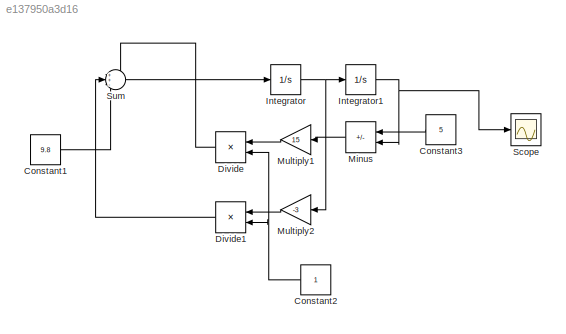
MODEL slx_e137950a3d16
KIND model
CONFIG AbsTol = auto
CONFIG EnableMultiTasking = off
CONFIG FixedStep = auto
CONFIG MaxStep = auto
CONFIG MinStep = auto
CONFIG RelTol = 1e-3
CONFIG SampleTimeConstraint = Unconstrained
CONFIG SolverName = VariableStepAuto
CONFIG StartTime = 0.0
CONFIG StopTime = 10
BLOCK [Constant] Constant1
  Value = 9.8
BLOCK [Constant] Constant2
BLOCK [Constant] Constant3
  Value = 5
BLOCK [Product] Divide
  Inputs = */
  Ports = [2, 1]
BLOCK [Product] Divide1
  Inputs = */
  Ports = [2, 1]
BLOCK [Integrator] Integrator
  Ports = [1, 1]
BLOCK [Integrator] Integrator1
  InitialCondition = 10
  Ports = [1, 1]
BLOCK [Sum] Minus
  IconShape = rectangular
  Inputs = +-
  Ports = [2, 1]
BLOCK [Gain] Multiply1
  Gain = 15
BLOCK [Gain] Multiply2
  Gain = -3
BLOCK [Scope] Scope
  Floating = off
  NumInputPorts = 1
  Ports = [1]
  ScopeSpecificationString = Simulink.scopes.TimeScopeBlockCfg('CurrentConfiguration', extmgr.ConfigurationSet(extmgr.Configuration('Core','General UI',true),extmgr.Configuration('Core','Source UI',true),extmgr.Configuration('Sources','WiredSimulink',true),extmgr.Configuration('Visuals','Time Domain',true,'SerializedDisplays',{struct('MinYLimReal','1.98139','MaxYLimReal','10.89096','YLabelReal','','MinYLimMag','1.98139','MaxY...<+1424ch>
BLOCK [Sum] Sum
  Inputs = ++-
  Ports = [3, 1]
LINE Constant1:1 -> Sum:3
NET Constant2:1 -> Divide1:2, Divide:2
LINE Constant3:1 -> Minus:1
LINE Divide1:1 -> Sum:2
LINE Divide:1 -> Sum:1
NET Integrator1:1 -> Minus:2, Scope:1
NET Integrator:1 -> Integrator1:1, Multiply2:1
LINE Minus:1 -> Multiply1:1
LINE Multiply1:1 -> Divide:1
LINE Multiply2:1 -> Divide1:1
LINE Sum:1 -> Integrator:1
note: NET lines group one-source signal fan-out (src -> all destinations, sorted); 1:1 wires keep LINE
